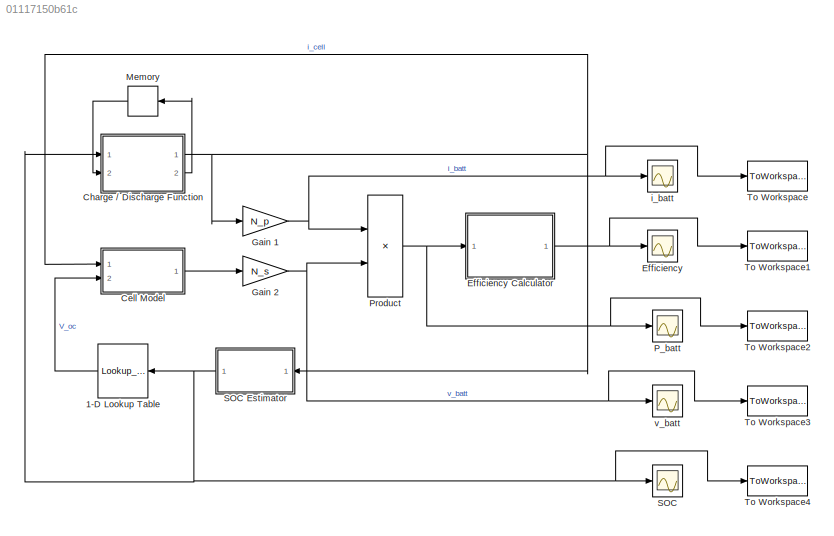
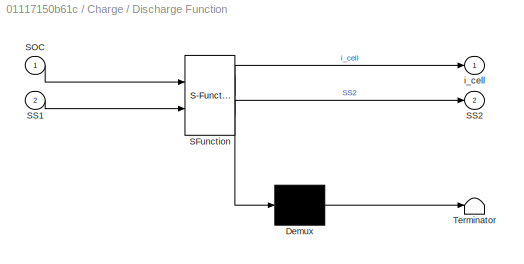
MODEL slx_01117150b61c
KIND model
CONFIG AbsTol = auto
CONFIG FixedStep = 0.1
CONFIG MaxStep = auto
CONFIG MinStep = auto
CONFIG RelTol = 1e-3
CONFIG SampleTimeConstraint = Unconstrained
CONFIG Solver = ode1
CONFIG SolverMode = Auto
CONFIG SolverName = ode1
CONFIG StartTime = 0.0
CONFIG StopTime = 43200
BLOCK [Lookup_n-D] 1-D Lookup Table
  BreakpointsForDimension1 = [0     , 0.10 , 0.25 , 0.50  , 0.75 , 0.90 , 1.00]
  InternalRulePriority = Speed
  NumberOfTableDimensions = 1
  Ports = [1, 1]
  RndMeth = Simplest
  Table = [3.51 , 3.57 , 3.63 , 3.71 , 3.93 , 4.08 , 4.19]
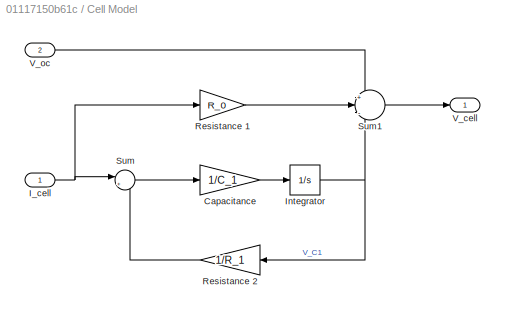
BLOCK [SubSystem] Cell Model
  Ports = [2, 1]
  RequestExecContextInheritance = off
  Variant = off
BLOCK [Gain] Cell Model/Capacitance
  Gain = 1/C_1
  OutDataTypeStr = Inherit: Inherit via internal rule
  ParamDataTypeStr = Inherit: Inherit via internal rule
  SaturateOnIntegerOverflow = off
BLOCK [Inport] Cell Model/I_cell
  IconDisplay = Port number
BLOCK [Integrator] Cell Model/Integrator
  Ports = [1, 1]
BLOCK [Gain] Cell Model/Resistance 1
  Gain = R_0
  OutDataTypeStr = Inherit: Inherit via internal rule
  ParamDataTypeStr = Inherit: Inherit via internal rule
  SaturateOnIntegerOverflow = off
BLOCK [Gain] Cell Model/Resistance 2
  Gain = 1/R_1
  OutDataTypeStr = Inherit: Inherit via internal rule
  ParamDataTypeStr = Inherit: Inherit via internal rule
  SaturateOnIntegerOverflow = off
BLOCK [Sum] Cell Model/Sum
  IconShape = round
  InputSameDT = off
  Inputs = |+-
  OutDataTypeStr = Inherit: Inherit via internal rule
  Ports = [2, 1]
  SaturateOnIntegerOverflow = off
BLOCK [Sum] Cell Model/Sum1
  IconShape = round
  InputSameDT = off
  Inputs = +|-|-
  OutDataTypeStr = Inherit: Inherit via internal rule
  Ports = [3, 1]
  SaturateOnIntegerOverflow = off
BLOCK [Outport] Cell Model/V_cell
  IconDisplay = Port number
BLOCK [Inport] Cell Model/V_oc
  IconDisplay = Port number
  Port = 2
BLOCK [SubSystem] Charge // Discharge Function
  ErrorFcn = Stateflow.Translate.translate
  PermitHierarchicalResolution = ExplicitOnly
  Ports = [2, 2]
  RequestExecContextInheritance = off
  SFBlockType = MATLAB Function
  TreatAsAtomicUnit = on
  Variant = off
BLOCK [Demux] Charge // Discharge Function/ Demux 
  Outputs = 1
  Ports = [1, 1]
BLOCK [S-Function] Charge // Discharge Function/ SFunction 
  EnableBusSupport = on
  FunctionName = sf_sfun
  Parameters = Param
  PortCounts = [2 3]
  Ports = [2, 3]
  SFunctionDeploymentMode = off
  Tag = Stateflow S-Function Battery_Model_1 2
BLOCK [Terminator] Charge // Discharge Function/ Terminator 
BLOCK [Inport] Charge // Discharge Function/SOC
  IconDisplay = Port number
BLOCK [Inport] Charge // Discharge Function/SS1
  IconDisplay = Port number
  Port = 2
BLOCK [Outport] Charge // Discharge Function/SS2
  IconDisplay = Port number
  Port = 2
BLOCK [Outport] Charge // Discharge Function/i_cell
  IconDisplay = Port number
BLOCK [Scope] Efficiency
  Ports = [1]
  ScopeSpecificationString = Simulink.scopes.TimeScopeBlockCfg('CurrentConfiguration', extmgr.ConfigurationSet(extmgr.Configuration('Core','General UI',true),extmgr.Configuration('Core','Source UI',true),extmgr.Configuration('Sources','WiredSimulink',true,'DataLoggingVariableName','ScopeData3'),extmgr.Configuration('Visuals','Time Domain',true,'SerializedDisplays',{struct('MinYLimReal','-7.75','MaxYLimReal','7.75','YLabelReal...<+1374ch>
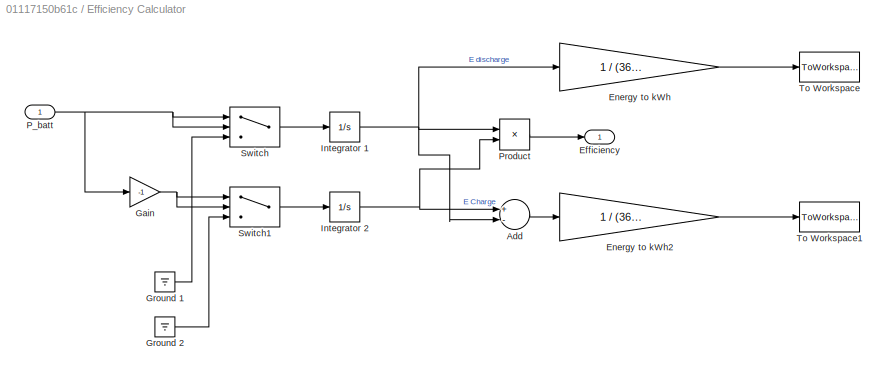
BLOCK [SubSystem] Efficiency Calculator 
  Ports = [1, 1]
  RequestExecContextInheritance = off
  Variant = off
BLOCK [Sum] Efficiency Calculator /Add
  InputSameDT = off
  Inputs = +-
  OutDataTypeStr = Inherit: Inherit via internal rule
  Ports = [2, 1]
  SaturateOnIntegerOverflow = off
BLOCK [Outport] Efficiency Calculator /Efficiency 
  IconDisplay = Port number
BLOCK [Gain] Efficiency Calculator /Energy to kWh
  Gain = 1 / (3600 * 1000)
  OutDataTypeStr = Inherit: Inherit via internal rule
  ParamDataTypeStr = Inherit: Inherit via internal rule
  SaturateOnIntegerOverflow = off
BLOCK [Gain] Efficiency Calculator /Energy to kWh2
  Gain = 1 / (3600 * 1000)
  OutDataTypeStr = Inherit: Inherit via internal rule
  ParamDataTypeStr = Inherit: Inherit via internal rule
  SaturateOnIntegerOverflow = off
BLOCK [Gain] Efficiency Calculator /Gain
  Gain = -1
  OutDataTypeStr = Inherit: Inherit via internal rule
  ParamDataTypeStr = Inherit: Inherit via internal rule
  SaturateOnIntegerOverflow = off
BLOCK [Ground] Efficiency Calculator /Ground 1
BLOCK [Ground] Efficiency Calculator /Ground 2
BLOCK [Integrator] Efficiency Calculator /Integrator 1
  Ports = [1, 1]
BLOCK [Integrator] Efficiency Calculator /Integrator 2
  Ports = [1, 1]
BLOCK [Inport] Efficiency Calculator /P_batt
  IconDisplay = Port number
BLOCK [Product] Efficiency Calculator /Product
  InputSameDT = off
  Inputs = */
  OutDataTypeStr = Inherit: Inherit via internal rule
  Ports = [2, 1]
  RndMeth = Floor
  SaturateOnIntegerOverflow = off
BLOCK [Switch] Efficiency Calculator /Switch
  Criteria = u2 > Threshold
  InputSameDT = off
  SaturateOnIntegerOverflow = off
BLOCK [Switch] Efficiency Calculator /Switch1
  Criteria = u2 > Threshold
  InputSameDT = off
  SaturateOnIntegerOverflow = off
BLOCK [ToWorkspace] Efficiency Calculator /To Workspace
  FixptAsFi = on
  MaxDataPoints = inf
  Ports = [1]
  SampleTime = -1
  Save2DSignal = 3-D array (concatenate along third dimension)
  SaveFormat = Timeseries
  VariableName = Net_Energy
BLOCK [ToWorkspace] Efficiency Calculator /To Workspace1
  FixptAsFi = on
  MaxDataPoints = inf
  Ports = [1]
  SampleTime = -1
  Save2DSignal = 3-D array (concatenate along third dimension)
  SaveFormat = Timeseries
  VariableName = Net_Losses
BLOCK [Gain] Gain 1
  Gain = N_p
  OutDataTypeStr = Inherit: Inherit via internal rule
  ParamDataTypeStr = Inherit: Inherit via internal rule
  SaturateOnIntegerOverflow = off
BLOCK [Gain] Gain 2
  Gain = N_s
  OutDataTypeStr = Inherit: Inherit via internal rule
  ParamDataTypeStr = Inherit: Inherit via internal rule
  SaturateOnIntegerOverflow = off
BLOCK [Memory] Memory
  X0 = -1
BLOCK [Scope] P_batt
  Ports = [1]
  ScopeSpecificationString = Simulink.scopes.TimeScopeBlockCfg('CurrentConfiguration', extmgr.ConfigurationSet(extmgr.Configuration('Core','General UI',true),extmgr.Configuration('Core','Source UI',true),extmgr.Configuration('Sources','WiredSimulink',true,'DataLoggingVariableName','ScopeData2'),extmgr.Configuration('Visuals','Time Domain',true,'SerializedDisplays',{struct('MinYLimReal','-2501.04314','MaxYLimReal','2445.6923',...<+1457ch>
BLOCK [Product] Product
  InputSameDT = off
  Inputs = **
  OutDataTypeStr = Inherit: Inherit via internal rule
  Ports = [2, 1]
  RndMeth = Floor
  SaturateOnIntegerOverflow = off
BLOCK [Scope] SOC
  Ports = [1]
  ScopeSpecificationString = Simulink.scopes.TimeScopeBlockCfg('CurrentConfiguration', extmgr.ConfigurationSet(extmgr.Configuration('Core','General UI',true),extmgr.Configuration('Core','Source UI',true),extmgr.Configuration('Sources','WiredSimulink',true,'DataLoggingVariableName','ScopeData1'),extmgr.Configuration('Visuals','Time Domain',true,'SerializedDisplays',{struct('MinYLimReal','-1.00001','MaxYLimReal','2.00002','YLab...<+1472ch>
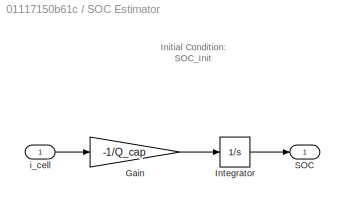
BLOCK [SubSystem] SOC Estimator
  Ports = [1, 1]
  RequestExecContextInheritance = off
  Variant = off
BLOCK [Gain] SOC Estimator/Gain
  Gain = -1/Q_cap
  OutDataTypeStr = Inherit: Inherit via internal rule
  ParamDataTypeStr = Inherit: Inherit via internal rule
  SaturateOnIntegerOverflow = off
BLOCK [Integrator] SOC Estimator/Integrator
  InitialCondition = Param.SOC_Init
  Ports = [1, 1]
BLOCK [Outport] SOC Estimator/SOC
  IconDisplay = Port number
BLOCK [Inport] SOC Estimator/i_cell 
  IconDisplay = Port number
BLOCK [ToWorkspace] To Workspace
  FixptAsFi = on
  MaxDataPoints = inf
  Ports = [1]
  SampleTime = -1
  Save2DSignal = 3-D array (concatenate along third dimension)
  SaveFormat = Timeseries
  VariableName = i_batt
BLOCK [ToWorkspace] To Workspace1
  FixptAsFi = on
  MaxDataPoints = inf
  Ports = [1]
  SampleTime = -1
  Save2DSignal = 3-D array (concatenate along third dimension)
  SaveFormat = Timeseries
  VariableName = Efficiency
BLOCK [ToWorkspace] To Workspace2
  FixptAsFi = on
  MaxDataPoints = inf
  Ports = [1]
  SampleTime = -1
  Save2DSignal = 3-D array (concatenate along third dimension)
  SaveFormat = Timeseries
  VariableName = P_batt
BLOCK [ToWorkspace] To Workspace3
  FixptAsFi = on
  MaxDataPoints = inf
  Ports = [1]
  SampleTime = -1
  Save2DSignal = 3-D array (concatenate along third dimension)
  SaveFormat = Timeseries
  VariableName = v_batt
BLOCK [ToWorkspace] To Workspace4
  FixptAsFi = on
  MaxDataPoints = inf
  Ports = [1]
  SampleTime = -1
  Save2DSignal = 3-D array (concatenate along third dimension)
  SaveFormat = Timeseries
  VariableName = SOC
BLOCK [Scope] i_batt
  Ports = [1]
  ScopeSpecificationString = Simulink.scopes.TimeScopeBlockCfg('CurrentConfiguration', extmgr.ConfigurationSet(extmgr.Configuration('Core','General UI',true),extmgr.Configuration('Core','Source UI',true),extmgr.Configuration('Sources','WiredSimulink',true,'DataLoggingVariableName','ScopeData2'),extmgr.Configuration('Visuals','Time Domain',true,'SerializedDisplays',{struct('MinYLimReal','-7.75','MaxYLimReal','7.75','YLabelReal...<+1374ch>
BLOCK [Scope] v_batt
  Ports = [1]
  ScopeSpecificationString = Simulink.scopes.TimeScopeBlockCfg('CurrentConfiguration', extmgr.ConfigurationSet(extmgr.Configuration('Core','General UI',true),extmgr.Configuration('Core','Source UI',true),extmgr.Configuration('Sources','WiredSimulink',true,'DataLoggingVariableName','ScopeData1'),extmgr.Configuration('Visuals','Time Domain',true,'SerializedDisplays',{struct('MinYLimReal','278.5902','MaxYLimReal','328.60998','YL...<+1402ch>
ANNOTATION SOC Estimator: Initial Condition: SOC_Init
LINE 1-D Lookup Table:1 -> Cell Model:2
LINE Cell Model/Capacitance:1 -> Cell Model/Integrator:1
NET Cell Model/I_cell:1 -> Cell Model/Resistance 1:1, Cell Model/Sum:1
NET Cell Model/Integrator:1 -> Cell Model/Resistance 2:1, Cell Model/Sum1:3
LINE Cell Model/Resistance 1:1 -> Cell Model/Sum1:2
LINE Cell Model/Resistance 2:1 -> Cell Model/Sum:2
LINE Cell Model/Sum1:1 -> Cell Model/V_cell:1
LINE Cell Model/Sum:1 -> Cell Model/Capacitance:1
LINE Cell Model/V_oc:1 -> Cell Model/Sum1:1
LINE Cell Model:1 -> Gain 2:1
NET Charge // Discharge Function:1 -> Cell Model:1, Gain 1:1, SOC Estimator:1
LINE Charge // Discharge Function:2 -> Memory:1
LINE Efficiency Calculator /Add:1 -> Efficiency Calculator /Energy to kWh2:1
LINE Efficiency Calculator /Energy to kWh2:1 -> Efficiency Calculator /To Workspace1:1
LINE Efficiency Calculator /Energy to kWh:1 -> Efficiency Calculator /To Workspace:1
NET Efficiency Calculator /Gain:1 -> Efficiency Calculator /Switch1:1, Efficiency Calculator /Switch1:2
LINE Efficiency Calculator /Ground 1:1 -> Efficiency Calculator /Switch:3
LINE Efficiency Calculator /Ground 2:1 -> Efficiency Calculator /Switch1:3
NET Efficiency Calculator /Integrator 1:1 -> Efficiency Calculator /Add:2, Efficiency Calculator /Energy to kWh:1, Efficiency Calculator /Product:1
NET Efficiency Calculator /Integrator 2:1 -> Efficiency Calculator /Add:1, Efficiency Calculator /Product:2
NET Efficiency Calculator /P_batt:1 -> Efficiency Calculator /Gain:1, Efficiency Calculator /Switch:1, Efficiency Calculator /Switch:2
LINE Efficiency Calculator /Product:1 -> Efficiency Calculator /Efficiency :1
LINE Efficiency Calculator /Switch1:1 -> Efficiency Calculator /Integrator 2:1
LINE Efficiency Calculator /Switch:1 -> Efficiency Calculator /Integrator 1:1
NET Efficiency Calculator :1 -> Efficiency:1, To Workspace1:1
NET Gain 1:1 -> Product:1, To Workspace:1, i_batt:1
NET Gain 2:1 -> Product:2, To Workspace3:1, v_batt:1
LINE Memory:1 -> Charge // Discharge Function:2
NET Product:1 -> Efficiency Calculator :1, P_batt:1, To Workspace2:1
LINE SOC Estimator/Gain:1 -> SOC Estimator/Integrator:1
LINE SOC Estimator/Integrator:1 -> SOC Estimator/SOC:1
LINE SOC Estimator/i_cell :1 -> SOC Estimator/Gain:1
NET SOC Estimator:1 -> 1-D Lookup Table:1, Charge // Discharge Function:1, SOC:1, To Workspace4:1
note: NET lines group one-source signal fan-out (src -> all destinations, sorted); 1:1 wires keep LINE
CHART Charge // Discharge 
Function states=1 transitions=1
  STATE_LABEL 'eML_blk_kernel()'
  STATE_LABEL 'SCRIPT:\nfunction [i_cell,SS2] = fcn(SOC, SS1, Param)\n\nSS2 = SS1;\n\nCell_C      = Param.Cell_C;\nC_rate_c    = Param.C_rate_c;\nC_rate_dc   = Param.C_rate_dc;\n\nSOC_Init    = Param.SOC_Init;\nSOC_Max     = Param.SOC_Max;\n\nif (SOC <= SOC_Init)\n    i_cell = (SS2)* C_rate_c * Cell_C;   % Negative Current charges battery\n    SS2 = -1;\n    \nelseif (SOC < SOC_Max && SOC >SOC_Init && SS2 == -1) % Charging Stat...<+419ch>'
